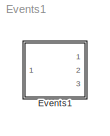
MODEL Events1
KIND model
CONFIG AbsTol = auto
CONFIG FixedStep = auto
CONFIG MaxStep = auto
CONFIG MinStep = auto
CONFIG RelTol = 1e-3
CONFIG Solver = ode45
CONFIG SolverMode = Auto
CONFIG StartTime = 0.0
CONFIG StopTime = 10.0
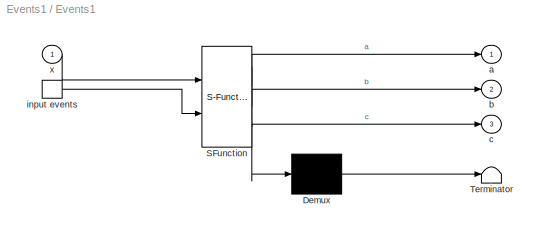
BLOCK [SubSystem] Events1
  MaskDescription = Stateflow diagram
  MaskDisplay = plot(sf('Private','sfblk','xIcon'),sf('Private','sfblk','yIcon'));text(0.5,0,sf('Private', 'sfblk', 'tIcon'),'HorizontalAl','Center','VerticalAl','Bottom');
  MaskIconFrame = off
  MaskIconOpaque = off
  MaskIconRotate = none
  MaskIconUnits = autoscale
  MaskSelfModifiable = on
  MaskType = Stateflow
  Ports = [1, 3, 0, 1]
  TreatAsAtomicUnit = off
BLOCK [Demux] Events1/ Demux 
  Outputs = 1
  Ports = [1, 1]
BLOCK [S-Function] Events1/ SFunction 
  FunctionName = sf_sfun
  PortCounts = [2 4]
  Ports = [2, 4]
  Tag = Stateflow S-Function Events1 1
BLOCK [Terminator] Events1/ Terminator 
BLOCK [TriggerPort] Events1/ input events 
  Ports = [0, 1]
  ShowOutputPort = on
  TriggerType = either
BLOCK [Outport] Events1/a
BLOCK [Outport] Events1/b
  Port = 2
BLOCK [Outport] Events1/c
  Port = 3
BLOCK [Inport] Events1/x
  PortDimensions = 1
LINE Events1/ Demux :1 -> Events1/ Terminator :1
LINE Events1/ SFunction :1 -> Events1/ Demux :1
LINE Events1/ SFunction :2 -> Events1/a:1
LINE Events1/ SFunction :3 -> Events1/b:1
LINE Events1/ SFunction :4 -> Events1/c:1
LINE Events1/ input events :1 -> Events1/ SFunction :2
LINE Events1/x:1 -> Events1/ SFunction :1
CHART Events1 states=14 transitions=18
  STATE_LABEL 'A'
  STATE_LABEL 'A2'
  STATE_LABEL 'A2a/\\nen:a=x+3'
  STATE_LABEL 'A2b/\\nen:a=x+4'
  STATE_LABEL 'A1'
  STATE_LABEL 'A1a/\\nen:a=x+1'
  STATE_LABEL 'A1b/\\nen:a=x+2'
  STATE_LABEL 'B'
  STATE_LABEL 'B2'
  STATE_LABEL 'B2a/\\nen:b=x+7'
  STATE_LABEL 'B2b/\\nen:b=x+8'
  STATE_LABEL 'B1'
  STATE_LABEL 'B1a/\\nen:b=x+5'
  STATE_LABEL 'B1b/\\nen:b=x+6'
